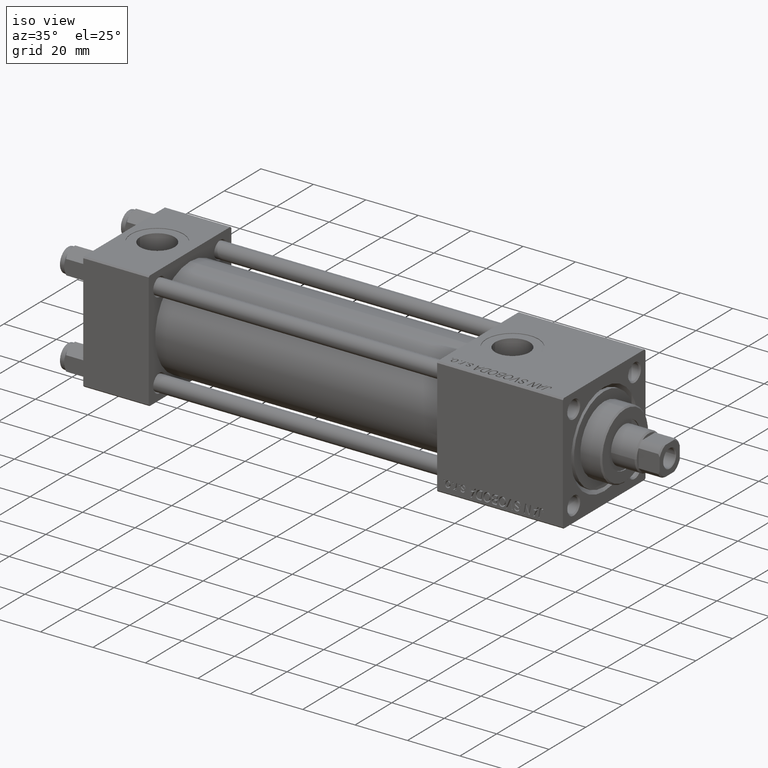
[diagram: clean part render]
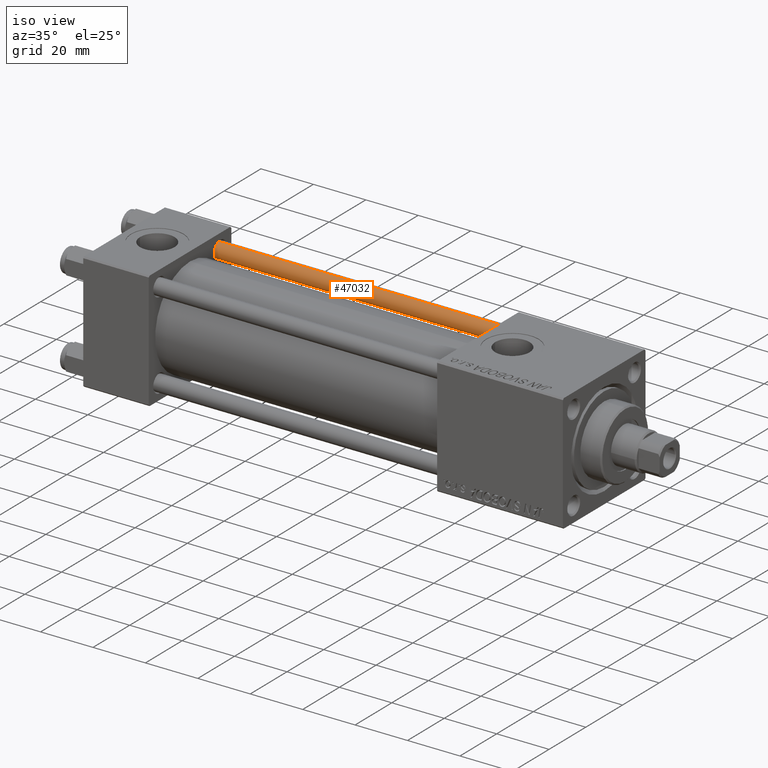
[diagram: same view with one face highlighted and labeled with its STEP entity id]
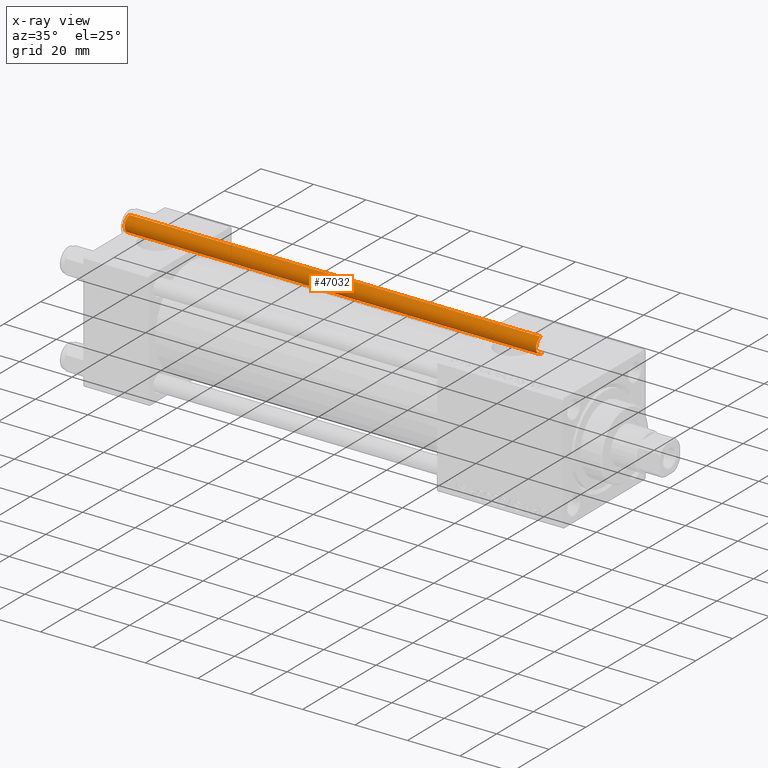
[diagram: x-ray of the same camera — body ghosted, the highlighted face saturated]
A machine part, iso view. The second image highlights one B-rep face of the part: STEP entity #47032.
The next image is the same camera in x-ray: the body ghosted, the highlighted face saturated — about 0% of this face is hidden behind the body in this view.
In plain terms, the highlighted cylindrical surface (edge-blend (fillet) strip) has radius 3 mm, axis along (-1, 0, 0).
Its self-contained STEP definition (entity closure, byte-faithful):
#350 = CARTESIAN_POINT ( 'NONE',  ( 3.000000000000000444, 3.673940397442060361E-16, 0.5000000000000281997 ) ) ;
#1515 = VECTOR ( 'NONE', #41601, 1000.000000000000000 ) ;
#1567 = DIRECTION ( 'NONE',  ( 0.000000000000000000, 0.000000000000000000, -1.000000000000000000 ) ) ;
#2537 = LINE ( 'NONE', #14657, #38130 ) ;
#2676 = ORIENTED_EDGE ( 'NONE', *, *, #37643, .T. ) ;
#3323 = AXIS2_PLACEMENT_3D ( 'NONE', #38696, #14640, #22843 ) ;
#4229 = AXIS2_PLACEMENT_3D ( 'NONE', #22122, #1567, #38247 ) ;
#4467 = CYLINDRICAL_SURFACE ( 'NONE', #3323, 3.000000000000000444 ) ;
#8122 = VERTEX_POINT ( 'NONE', #34053 ) ;
#12789 = EDGE_CURVE ( 'NONE', #8122, #17825, #42820, .T. ) ;
#14640 = DIRECTION ( 'NONE',  ( -0.000000000000000000, -0.000000000000000000, -1.000000000000000000 ) ) ;
#14657 = CARTESIAN_POINT ( 'NONE',  ( -3.000000000000000444, 0.000000000000000000, 158.0000000000000000 ) ) ;
#14877 = DIRECTION ( 'NONE',  ( -0.000000000000000000, -0.000000000000000000, 1.000000000000000000 ) ) ;
#15319 = ORIENTED_EDGE ( 'NONE', *, *, #20529, .F. ) ;
#17825 = VERTEX_POINT ( 'NONE', #350 ) ;
#20529 = EDGE_CURVE ( 'NONE', #31613, #17825, #37626, .T. ) ;
#22034 = CARTESIAN_POINT ( 'NONE',  ( 3.000000000000000444, 3.673940397442060361E-16, 157.5000000000000000 ) ) ;
#22122 = CARTESIAN_POINT ( 'NONE',  ( 0.000000000000000000, 0.000000000000000000, 157.5000000000000000 ) ) ;
#22843 = DIRECTION ( 'NONE',  ( -1.000000000000000000, 0.000000000000000000, 0.000000000000000000 ) ) ;
#25826 = EDGE_LOOP ( 'NONE', ( #15319, #49391, #2676, #41819 ) ) ;
#30009 = DIRECTION ( 'NONE',  ( -0.000000000000000000, -0.000000000000000000, -1.000000000000000000 ) ) ;
#30282 = VERTEX_POINT ( 'NONE', #42499 ) ;
#30482 = CARTESIAN_POINT ( 'NONE',  ( 0.000000000000000000, 0.000000000000000000, 0.5000000000000281997 ) ) ;
#31613 = VERTEX_POINT ( 'NONE', #22034 ) ;
#34053 = CARTESIAN_POINT ( 'NONE',  ( -3.000000000000000444, 0.000000000000000000, 0.5000000000000281997 ) ) ;
#36894 = AXIS2_PLACEMENT_3D ( 'NONE', #30482, #14877, #46572 ) ;
#37626 = LINE ( 'NONE', #38407, #1515 ) ;
#37643 = EDGE_CURVE ( 'NONE', #30282, #8122, #2537, .T. ) ;
#38130 = VECTOR ( 'NONE', #30009, 1000.000000000000000 ) ;
#38247 = DIRECTION ( 'NONE',  ( 1.000000000000000000, 0.000000000000000000, 0.000000000000000000 ) ) ;
#38407 = CARTESIAN_POINT ( 'NONE',  ( 3.000000000000000444, 3.673940397442060361E-16, 158.0000000000000000 ) ) ;
#38696 = CARTESIAN_POINT ( 'NONE',  ( 0.000000000000000000, 0.000000000000000000, 158.0000000000000000 ) ) ;
#40654 = FACE_OUTER_BOUND ( 'NONE', #25826, .T. ) ;
#41601 = DIRECTION ( 'NONE',  ( -0.000000000000000000, -0.000000000000000000, -1.000000000000000000 ) ) ;
#41819 = ORIENTED_EDGE ( 'NONE', *, *, #12789, .T. ) ;
#42499 = CARTESIAN_POINT ( 'NONE',  ( -3.000000000000000444, 0.000000000000000000, 157.5000000000000000 ) ) ;
#42820 = CIRCLE ( 'NONE', #36894, 3.000000000000000444 ) ;
#44966 = CIRCLE ( 'NONE', #4229, 3.000000000000000444 ) ;
#46572 = DIRECTION ( 'NONE',  ( 1.000000000000000000, 0.000000000000000000, 0.000000000000000000 ) ) ;
#47032 = ADVANCED_FACE ( 'NONE', ( #40654 ), #4467, .T. ) ;
#48006 = EDGE_CURVE ( 'NONE', #31613, #30282, #44966, .T. ) ;
#49391 = ORIENTED_EDGE ( 'NONE', *, *, #48006, .T. ) ;